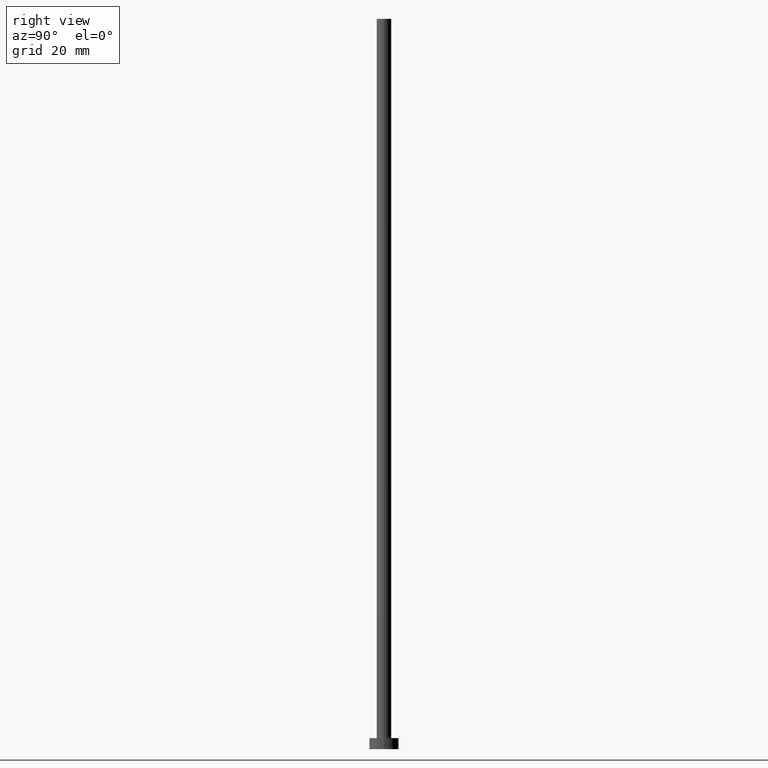
[diagram: clean part render]
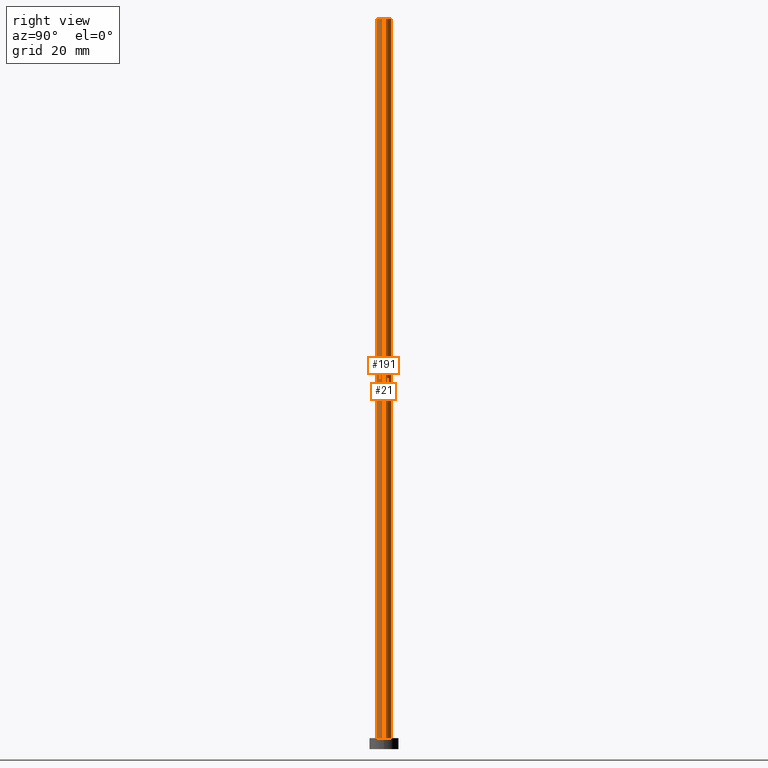
[diagram: same view with one multi-face feature highlighted, each face labeled with its STEP entity id]
A machine part, right view. The highlighted faces form ONE feature: a constant-radius fillet chain: 2 tangent blend faces with common blend radius 2 mm. The faces share edges in the B-rep.
Their STEP definitions:
[1] entity #191 (Cylinder):
#5 = DIRECTION ( 'NONE',  ( -0.000000000000000000, -0.000000000000000000, -1.000000000000000000 ) ) ;
#17 = DIRECTION ( 'NONE',  ( -0.000000000000000000, -0.000000000000000000, -1.000000000000000000 ) ) ;
#32 = VECTOR ( 'NONE', #5, 1000.000000000000000 ) ;
#36 = EDGE_CURVE ( 'NONE', #153, #144, #151, .T. ) ;
#37 = CYLINDRICAL_SURFACE ( 'NONE', #239, 2.000000000000000000 ) ;
#40 = AXIS2_PLACEMENT_3D ( 'NONE', #138, #216, #230 ) ;
#41 = CARTESIAN_POINT ( 'NONE',  ( 2.000000000000000000, 2.449293598294706414E-16, 200.0000000000000000 ) ) ;
#44 = EDGE_LOOP ( 'NONE', ( #140, #254, #249, #105 ) ) ;
#53 = DIRECTION ( 'NONE',  ( 1.000000000000000000, 0.000000000000000000, 0.000000000000000000 ) ) ;
#58 = CARTESIAN_POINT ( 'NONE',  ( 2.000000000000000000, 2.449293598294706414E-16, 200.0000000000000000 ) ) ;
#63 = CIRCLE ( 'NONE', #253, 2.000000000000000000 ) ;
#76 = VERTEX_POINT ( 'NONE', #190 ) ;
#103 = DIRECTION ( 'NONE',  ( -1.000000000000000000, 0.000000000000000000, 0.000000000000000000 ) ) ;
#104 = CIRCLE ( 'NONE', #40, 2.000000000000000000 ) ;
#105 = ORIENTED_EDGE ( 'NONE', *, *, #126, .T. ) ;
#108 = LINE ( 'NONE', #41, #226 ) ;
#120 = CARTESIAN_POINT ( 'NONE',  ( -2.000000000000000000, 0.000000000000000000, 200.0000000000000000 ) ) ;
#126 = EDGE_CURVE ( 'NONE', #144, #76, #104, .T. ) ;
#133 = CARTESIAN_POINT ( 'NONE',  ( -2.000000000000000000, 0.000000000000000000, 200.0000000000000000 ) ) ;
#138 = CARTESIAN_POINT ( 'NONE',  ( 0.000000000000000000, 0.000000000000000000, 3.000000000000000000 ) ) ;
#140 = ORIENTED_EDGE ( 'NONE', *, *, #255, .F. ) ;
#144 = VERTEX_POINT ( 'NONE', #185 ) ;
#151 = LINE ( 'NONE', #133, #32 ) ;
#153 = VERTEX_POINT ( 'NONE', #120 ) ;
#157 = FACE_OUTER_BOUND ( 'NONE', #44, .T. ) ;
#172 = EDGE_CURVE ( 'NONE', #153, #219, #63, .T. ) ;
#185 = CARTESIAN_POINT ( 'NONE',  ( -2.000000000000000000, 0.000000000000000000, 3.000000000000000000 ) ) ;
#190 = CARTESIAN_POINT ( 'NONE',  ( 2.000000000000000000, 2.449293598294706414E-16, 3.000000000000000000 ) ) ;
#191 = ADVANCED_FACE ( 'NONE', ( #157 ), #37, .T. ) ;
#200 = DIRECTION ( 'NONE',  ( 0.000000000000000000, 0.000000000000000000, 1.000000000000000000 ) ) ;
#202 = CARTESIAN_POINT ( 'NONE',  ( 0.000000000000000000, 0.000000000000000000, 200.0000000000000000 ) ) ;
#216 = DIRECTION ( 'NONE',  ( 0.000000000000000000, 0.000000000000000000, 1.000000000000000000 ) ) ;
#219 = VERTEX_POINT ( 'NONE', #58 ) ;
#226 = VECTOR ( 'NONE', #235, 1000.000000000000000 ) ;
#230 = DIRECTION ( 'NONE',  ( 1.000000000000000000, 0.000000000000000000, 0.000000000000000000 ) ) ;
#232 = CARTESIAN_POINT ( 'NONE',  ( 0.000000000000000000, 0.000000000000000000, 200.0000000000000000 ) ) ;
#235 = DIRECTION ( 'NONE',  ( -0.000000000000000000, -0.000000000000000000, -1.000000000000000000 ) ) ;
#239 = AXIS2_PLACEMENT_3D ( 'NONE', #202, #17, #103 ) ;
#249 = ORIENTED_EDGE ( 'NONE', *, *, #36, .T. ) ;
#253 = AXIS2_PLACEMENT_3D ( 'NONE', #232, #200, #53 ) ;
#254 = ORIENTED_EDGE ( 'NONE', *, *, #172, .F. ) ;
#255 = EDGE_CURVE ( 'NONE', #219, #76, #108, .T. ) ;
[2] entity #21 (Cylinder):
#5 = DIRECTION ( 'NONE',  ( -0.000000000000000000, -0.000000000000000000, -1.000000000000000000 ) ) ;
#6 = EDGE_CURVE ( 'NONE', #76, #144, #66, .T. ) ;
#11 = CYLINDRICAL_SURFACE ( 'NONE', #52, 2.000000000000000000 ) ;
#21 = ADVANCED_FACE ( 'NONE', ( #29 ), #11, .T. ) ;
#25 = DIRECTION ( 'NONE',  ( 0.000000000000000000, 0.000000000000000000, 1.000000000000000000 ) ) ;
#29 = FACE_OUTER_BOUND ( 'NONE', #147, .T. ) ;
#32 = VECTOR ( 'NONE', #5, 1000.000000000000000 ) ;
#36 = EDGE_CURVE ( 'NONE', #153, #144, #151, .T. ) ;
#41 = CARTESIAN_POINT ( 'NONE',  ( 2.000000000000000000, 2.449293598294706414E-16, 200.0000000000000000 ) ) ;
#52 = AXIS2_PLACEMENT_3D ( 'NONE', #114, #65, #169 ) ;
#58 = CARTESIAN_POINT ( 'NONE',  ( 2.000000000000000000, 2.449293598294706414E-16, 200.0000000000000000 ) ) ;
#65 = DIRECTION ( 'NONE',  ( -0.000000000000000000, -0.000000000000000000, -1.000000000000000000 ) ) ;
#66 = CIRCLE ( 'NONE', #175, 2.000000000000000000 ) ;
#68 = DIRECTION ( 'NONE',  ( 1.000000000000000000, 0.000000000000000000, 0.000000000000000000 ) ) ;
#69 = EDGE_CURVE ( 'NONE', #219, #153, #117, .T. ) ;
#76 = VERTEX_POINT ( 'NONE', #190 ) ;
#79 = ORIENTED_EDGE ( 'NONE', *, *, #6, .T. ) ;
#90 = DIRECTION ( 'NONE',  ( 1.000000000000000000, 0.000000000000000000, 0.000000000000000000 ) ) ;
#108 = LINE ( 'NONE', #41, #226 ) ;
#114 = CARTESIAN_POINT ( 'NONE',  ( 0.000000000000000000, 0.000000000000000000, 200.0000000000000000 ) ) ;
#117 = CIRCLE ( 'NONE', #217, 2.000000000000000000 ) ;
#120 = CARTESIAN_POINT ( 'NONE',  ( -2.000000000000000000, 0.000000000000000000, 200.0000000000000000 ) ) ;
#130 = ORIENTED_EDGE ( 'NONE', *, *, #36, .F. ) ;
#133 = CARTESIAN_POINT ( 'NONE',  ( -2.000000000000000000, 0.000000000000000000, 200.0000000000000000 ) ) ;
#144 = VERTEX_POINT ( 'NONE', #185 ) ;
#147 = EDGE_LOOP ( 'NONE', ( #164, #231, #79, #130 ) ) ;
#151 = LINE ( 'NONE', #133, #32 ) ;
#153 = VERTEX_POINT ( 'NONE', #120 ) ;
#164 = ORIENTED_EDGE ( 'NONE', *, *, #69, .F. ) ;
#169 = DIRECTION ( 'NONE',  ( -1.000000000000000000, 0.000000000000000000, 0.000000000000000000 ) ) ;
#171 = CARTESIAN_POINT ( 'NONE',  ( 0.000000000000000000, 0.000000000000000000, 3.000000000000000000 ) ) ;
#175 = AXIS2_PLACEMENT_3D ( 'NONE', #171, #194, #90 ) ;
#185 = CARTESIAN_POINT ( 'NONE',  ( -2.000000000000000000, 0.000000000000000000, 3.000000000000000000 ) ) ;
#190 = CARTESIAN_POINT ( 'NONE',  ( 2.000000000000000000, 2.449293598294706414E-16, 3.000000000000000000 ) ) ;
#194 = DIRECTION ( 'NONE',  ( 0.000000000000000000, 0.000000000000000000, 1.000000000000000000 ) ) ;
#217 = AXIS2_PLACEMENT_3D ( 'NONE', #242, #25, #68 ) ;
#219 = VERTEX_POINT ( 'NONE', #58 ) ;
#226 = VECTOR ( 'NONE', #235, 1000.000000000000000 ) ;
#231 = ORIENTED_EDGE ( 'NONE', *, *, #255, .T. ) ;
#235 = DIRECTION ( 'NONE',  ( -0.000000000000000000, -0.000000000000000000, -1.000000000000000000 ) ) ;
#242 = CARTESIAN_POINT ( 'NONE',  ( 0.000000000000000000, 0.000000000000000000, 200.0000000000000000 ) ) ;
#255 = EDGE_CURVE ( 'NONE', #219, #76, #108, .T. ) ;